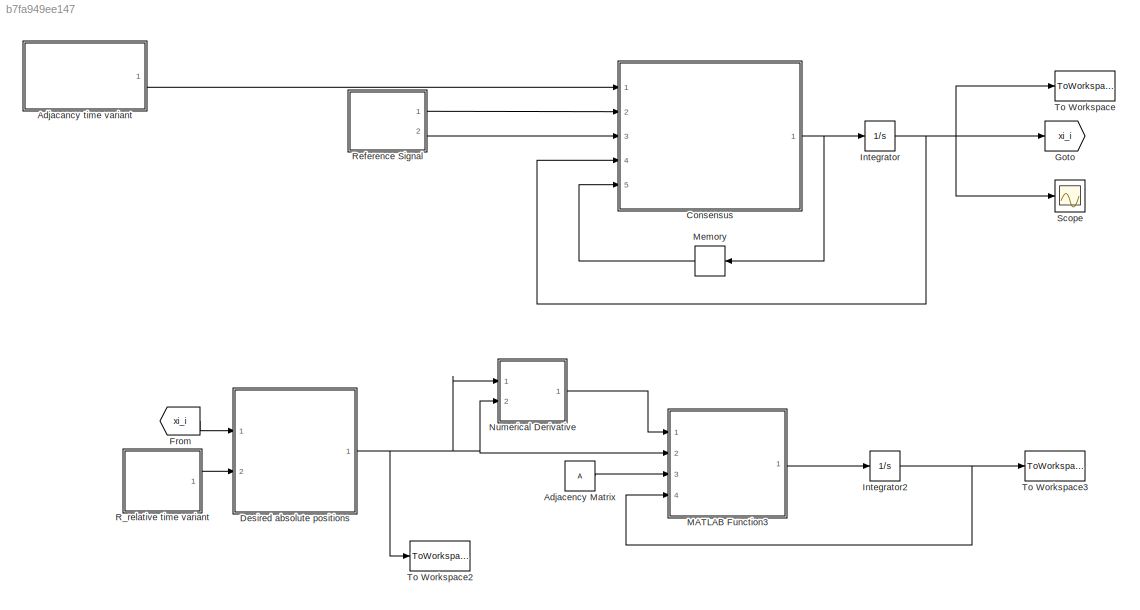
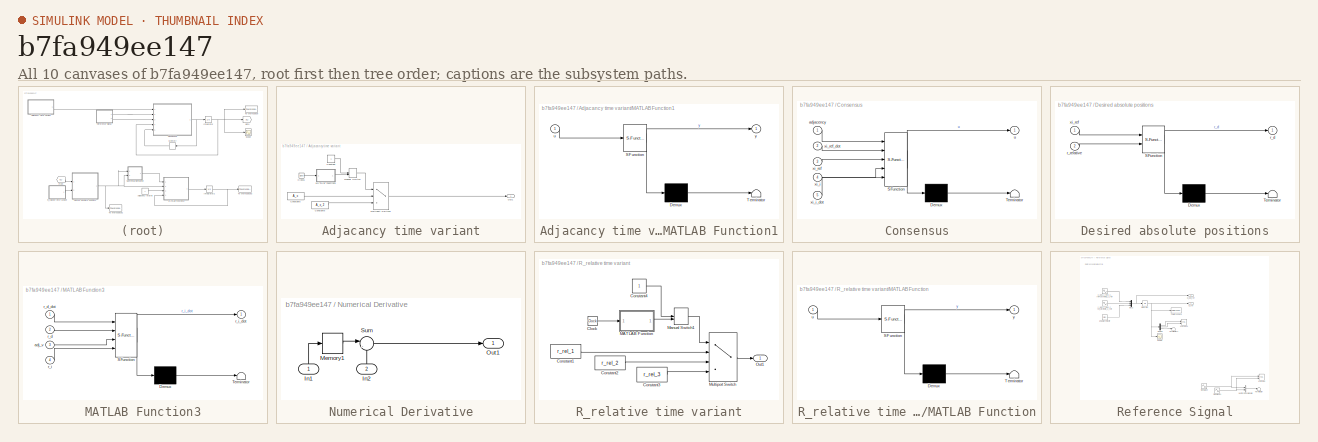
[diagram: thumbnail index - all 10 canvases of the model, root first then tree order]
MODEL slx_b7fa949ee147
KIND model
CONFIG AbsTol = auto
CONFIG FixedStep = 0.01
CONFIG MaxStep = 0.01
CONFIG MinStep = auto
CONFIG RelTol = 1e-3
CONFIG SampleTimeConstraint = Unconstrained
CONFIG Solver = VariableStepAuto
CONFIG SolverMode = Auto
CONFIG SolverName = VariableStepAuto
CONFIG StartTime = 0.0
CONFIG StopTime = 100
BLOCK [SubSystem] Adjacancy time variant
  Ports = [0, 1]
  RequestExecContextInheritance = off
  Variant = off
BLOCK [Clock] Adjacancy time variant/Clock1
BLOCK [Constant] Adjacancy time variant/Constant
BLOCK [Constant] Adjacancy time variant/Constant5
  Value = A_c
BLOCK [Constant] Adjacancy time variant/Constant6
  Value = A_c_2
BLOCK [SubSystem] Adjacancy time variant/MATLAB Function1
  ErrorFcn = Stateflow.Translate.translate
  PermitHierarchicalResolution = ExplicitOnly
  Ports = [1, 1]
  RequestExecContextInheritance = off
  SFBlockType = MATLAB Function
  TreatAsAtomicUnit = on
  Variant = off
BLOCK [Demux] Adjacancy time variant/MATLAB Function1/ Demux 
  Outputs = 1
  Ports = [1, 1]
BLOCK [S-Function] Adjacancy time variant/MATLAB Function1/ SFunction 
  EnableBusSupport = on
  FunctionName = sf_sfun
  PortCounts = [1 2]
  Ports = [1, 2]
  SFunctionDeploymentMode = off
  Tag = Stateflow S-Function simulation 1
BLOCK [Terminator] Adjacancy time variant/MATLAB Function1/ Terminator 
BLOCK [Inport] Adjacancy time variant/MATLAB Function1/u
  IconDisplay = Port number
BLOCK [Outport] Adjacancy time variant/MATLAB Function1/y
  IconDisplay = Port number
BLOCK [ManualSwitch] Adjacancy time variant/Manual Switch
  CurrentSetting = 0
BLOCK [MultiPortSwitch] Adjacancy time variant/Multiport Switch1
  InputSameDT = off
  Inputs = 2
  Ports = [3, 1]
  SaturateOnIntegerOverflow = off
BLOCK [Outport] Adjacancy time variant/Out1
  IconDisplay = Port number
BLOCK [Constant] Adjacency Matrix
  Value = A
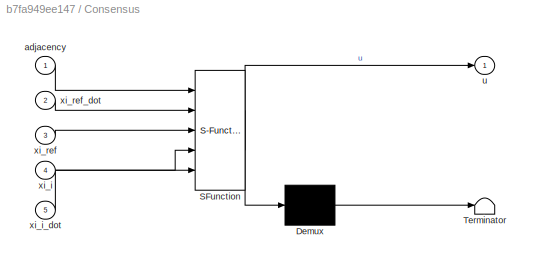
BLOCK [SubSystem] Consensus
  ErrorFcn = Stateflow.Translate.translate
  MinAlgLoopOccurrences = on
  PermitHierarchicalResolution = ExplicitOnly
  Ports = [5, 1]
  RequestExecContextInheritance = off
  SFBlockType = MATLAB Function
  TreatAsAtomicUnit = on
  Variant = off
BLOCK [Demux] Consensus/ Demux 
  Outputs = 1
  Ports = [1, 1]
BLOCK [S-Function] Consensus/ SFunction 
  EnableBusSupport = on
  FunctionName = sf_sfun
  PortCounts = [5 2]
  Ports = [5, 2]
  SFunctionDeploymentMode = off
  Tag = Stateflow S-Function simulation 2
BLOCK [Terminator] Consensus/ Terminator 
BLOCK [Inport] Consensus/adjacency
  IconDisplay = Port number
BLOCK [Outport] Consensus/u
  IconDisplay = Port number
BLOCK [Inport] Consensus/xi_i
  IconDisplay = Port number
  Port = 4
BLOCK [Inport] Consensus/xi_i_dot
  IconDisplay = Port number
  Port = 5
BLOCK [Inport] Consensus/xi_ref
  IconDisplay = Port number
  Port = 3
BLOCK [Inport] Consensus/xi_ref_dot
  IconDisplay = Port number
  Port = 2
BLOCK [SubSystem] Desired absolute positions
  ErrorFcn = Stateflow.Translate.translate
  PermitHierarchicalResolution = ExplicitOnly
  Ports = [2, 1]
  RequestExecContextInheritance = off
  SFBlockType = MATLAB Function
  TreatAsAtomicUnit = on
  Variant = off
BLOCK [Demux] Desired absolute positions/ Demux 
  Outputs = 1
  Ports = [1, 1]
BLOCK [S-Function] Desired absolute positions/ SFunction 
  EnableBusSupport = on
  FunctionName = sf_sfun
  PortCounts = [2 2]
  Ports = [2, 2]
  SFunctionDeploymentMode = off
  Tag = Stateflow S-Function simulation 4
BLOCK [Terminator] Desired absolute positions/ Terminator 
BLOCK [Outport] Desired absolute positions/r_d
  IconDisplay = Port number
BLOCK [Inport] Desired absolute positions/r_relative
  IconDisplay = Port number
  Port = 2
BLOCK [Inport] Desired absolute positions/xi_ref
  IconDisplay = Port number
BLOCK [From] From
  GotoTag = xi_i
BLOCK [Goto] Goto
  GotoTag = xi_i
BLOCK [Integrator] Integrator
  InitialCondition = xi_init
  Ports = [1, 1]
BLOCK [Integrator] Integrator2
  InitialCondition = r_init
  Ports = [1, 1]
BLOCK [SubSystem] MATLAB Function3
  ErrorFcn = Stateflow.Translate.translate
  PermitHierarchicalResolution = ExplicitOnly
  Ports = [4, 1]
  RequestExecContextInheritance = off
  SFBlockType = MATLAB Function
  TreatAsAtomicUnit = on
  Variant = off
BLOCK [Demux] MATLAB Function3/ Demux 
  Outputs = 1
  Ports = [1, 1]
BLOCK [S-Function] MATLAB Function3/ SFunction 
  EnableBusSupport = on
  FunctionName = sf_sfun
  PortCounts = [4 2]
  Ports = [4, 2]
  SFunctionDeploymentMode = off
  Tag = Stateflow S-Function simulation 5
BLOCK [Terminator] MATLAB Function3/ Terminator 
BLOCK [Inport] MATLAB Function3/adj_v
  IconDisplay = Port number
  Port = 3
BLOCK [Inport] MATLAB Function3/r_d
  IconDisplay = Port number
  Port = 2
BLOCK [Inport] MATLAB Function3/r_d_dot
  IconDisplay = Port number
BLOCK [Inport] MATLAB Function3/r_i
  IconDisplay = Port number
  Port = 4
BLOCK [Outport] MATLAB Function3/r_i_dot
  IconDisplay = Port number
BLOCK [Memory] Memory
BLOCK [SubSystem] Numerical Derivative
  Ports = [2, 1]
  RequestExecContextInheritance = off
  Variant = off
BLOCK [Inport] Numerical Derivative/In1
  IconDisplay = Port number
BLOCK [Inport] Numerical Derivative/In2
  IconDisplay = Port number
  Port = 2
BLOCK [Memory] Numerical Derivative/Memory1
BLOCK [Outport] Numerical Derivative/Out1
  IconDisplay = Port number
BLOCK [Sum] Numerical Derivative/Sum
  IconShape = round
  InputSameDT = off
  Inputs = |-+
  OutDataTypeStr = Inherit: Inherit via internal rule
  Ports = [2, 1]
  SaturateOnIntegerOverflow = off
BLOCK [SubSystem] R_relative time variant
  Ports = [0, 1]
  RequestExecContextInheritance = off
  Variant = off
BLOCK [Clock] R_relative time variant/Clock
BLOCK [Constant] R_relative time variant/Constant1
  Value = r_rel_1
BLOCK [Constant] R_relative time variant/Constant2
  Value = r_rel_2
BLOCK [Constant] R_relative time variant/Constant3
  Value = r_rel_3
BLOCK [Constant] R_relative time variant/Constant4
BLOCK [SubSystem] R_relative time variant/MATLAB Function
  ErrorFcn = Stateflow.Translate.translate
  PermitHierarchicalResolution = ExplicitOnly
  Ports = [1, 1]
  RequestExecContextInheritance = off
  SFBlockType = MATLAB Function
  TreatAsAtomicUnit = on
  Variant = off
BLOCK [Demux] R_relative time variant/MATLAB Function/ Demux 
  Outputs = 1
  Ports = [1, 1]
BLOCK [S-Function] R_relative time variant/MATLAB Function/ SFunction 
  EnableBusSupport = on
  FunctionName = sf_sfun
  PortCounts = [1 2]
  Ports = [1, 2]
  SFunctionDeploymentMode = off
  Tag = Stateflow S-Function simulation 3
BLOCK [Terminator] R_relative time variant/MATLAB Function/ Terminator 
BLOCK [Inport] R_relative time variant/MATLAB Function/u
  IconDisplay = Port number
BLOCK [Outport] R_relative time variant/MATLAB Function/y
  IconDisplay = Port number
BLOCK [ManualSwitch] R_relative time variant/Manual Switch1
  CurrentSetting = 0
BLOCK [MultiPortSwitch] R_relative time variant/Multiport Switch
  InputSameDT = off
  Ports = [4, 1]
  SaturateOnIntegerOverflow = off
BLOCK [Outport] R_relative time variant/Out1
  IconDisplay = Port number
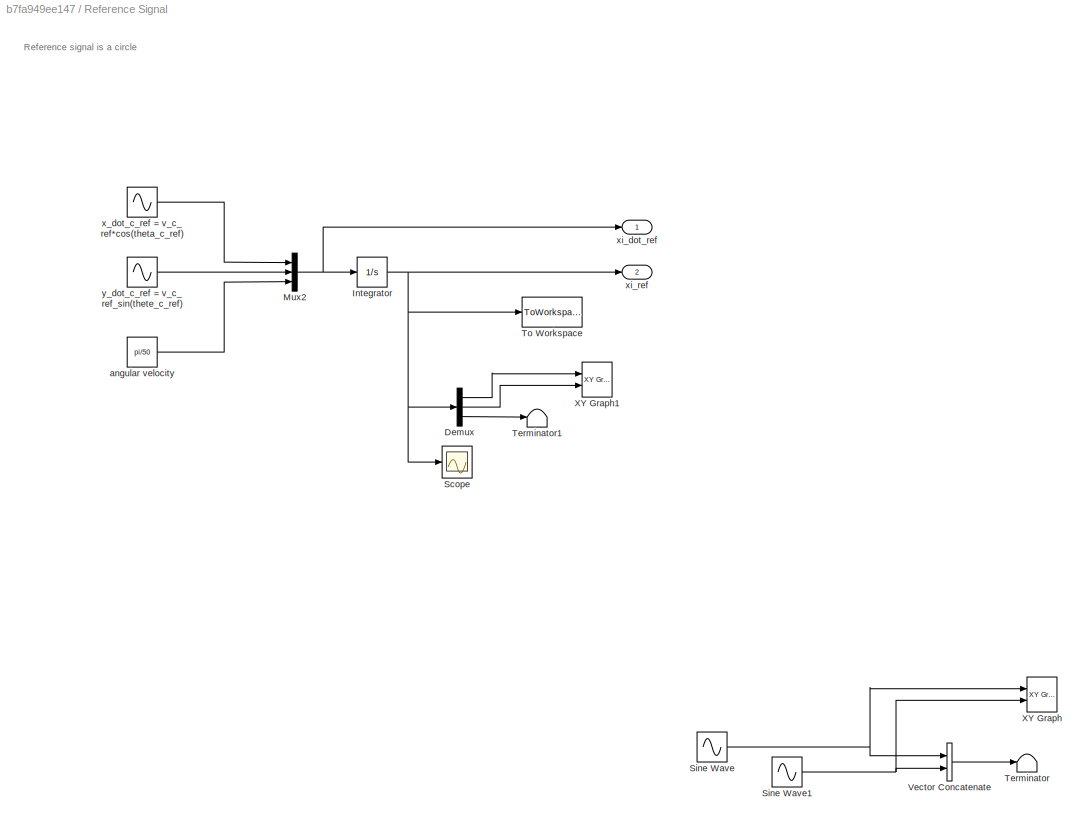
BLOCK [SubSystem] Reference Signal
  Ports = [0, 2]
  RequestExecContextInheritance = off
  Variant = off
BLOCK [Demux] Reference Signal/Demux
  DisplayOption = bar
  Outputs = 3
  Ports = [1, 3]
BLOCK [Integrator] Reference Signal/Integrator
  InitialCondition = [0;0;0]
  Ports = [1, 1]
BLOCK [Mux] Reference Signal/Mux2
  DisplayOption = bar
  Inputs = 3
  Ports = [3, 1]
BLOCK [Scope] Reference Signal/Scope
  Ports = [1]
  ScopeSpecificationString = Simulink.scopes.TimeScopeBlockCfg('CurrentConfiguration', extmgr.ConfigurationSet(extmgr.Configuration('Core','General UI',true),extmgr.Configuration('Core','Source UI',true),extmgr.Configuration('Sources','WiredSimulink',true,'DataLoggingVariableName','ScopeData1'),extmgr.Configuration('Visuals','Time Domain',true,'SerializedDisplays',{struct('MinYLimReal','-1.79783','MaxYLimReal','7.18108','YLab...<+1431ch>
BLOCK [Sin] Reference Signal/Sine Wave
  Commented = on
  Phase = pi/2
  Ports = [0, 1]
  SampleTime = 0
BLOCK [Sin] Reference Signal/Sine Wave1
  Commented = on
  Ports = [0, 1]
  SampleTime = 0
BLOCK [Terminator] Reference Signal/Terminator
  Commented = on
BLOCK [Terminator] Reference Signal/Terminator1
BLOCK [ToWorkspace] Reference Signal/To Workspace
  FixptAsFi = on
  MaxDataPoints = inf
  Ports = [1]
  SampleTime = -1
  Save2DSignal = 3-D array (concatenate along third dimension)
  SaveFormat = Timeseries
  VariableName = xi_ref
BLOCK [Concatenate] Reference Signal/Vector Concatenate
  Commented = on
  Ports = [2, 1]
BLOCK [Reference] Reference Signal/XY Graph  REF=simulink/Sinks/XY Graph
  Commented = on
  Ports = [2]
  SourceBlock = simulink/Sinks/XY Graph
  SourceType = XY scope.
BLOCK [Reference] Reference Signal/XY Graph1  REF=simulink/Sinks/XY Graph
  Commented = on
  Ports = [2]
  SourceBlock = simulink/Sinks/XY Graph
  SourceType = XY scope.
BLOCK [Constant] Reference Signal/angular velocity
  Value = pi/50
BLOCK [Sin] Reference Signal/x_dot_c_ref = v_c_ref*cos(theta_c_ref)
  Amplitude = 9*pi/500
  Frequency = pi/50
  Phase = pi/2
  Ports = [0, 1]
  SampleTime = 0
BLOCK [Outport] Reference Signal/xi_dot_ref
  IconDisplay = Port number
BLOCK [Outport] Reference Signal/xi_ref
  IconDisplay = Port number
  Port = 2
BLOCK [Sin] Reference Signal/y_dot_c_ref = v_c_ref_sin(thete_c_ref)
  Amplitude = 9*pi/500
  Frequency = pi/50
  Ports = [0, 1]
  SampleTime = 0
BLOCK [Scope] Scope
  Ports = [1]
  ScopeSpecificationString = Simulink.scopes.TimeScopeBlockCfg('CurrentConfiguration', extmgr.ConfigurationSet(extmgr.Configuration('Core','General UI',true),extmgr.Configuration('Core','Source UI',true),extmgr.Configuration('Sources','WiredSimulink',true),extmgr.Configuration('Visuals','Time Domain',true,'SerializedDisplays',{struct('MinYLimReal','-4.56832','MaxYLimReal','7.25237','YLabelReal','','MinYLimMag','0.00000','MaxY...<+1645ch>
BLOCK [ToWorkspace] To Workspace
  FixptAsFi = on
  MaxDataPoints = inf
  Ports = [1]
  SampleTime = -1
  Save2DSignal = 3-D array (concatenate along third dimension)
  SaveFormat = Timeseries
  VariableName = xi_ref_i
BLOCK [ToWorkspace] To Workspace2
  FixptAsFi = on
  MaxDataPoints = inf
  Ports = [1]
  SampleTime = -1
  Save2DSignal = 3-D array (concatenate along third dimension)
  SaveFormat = Timeseries
  VariableName = simout
BLOCK [ToWorkspace] To Workspace3
  FixptAsFi = on
  MaxDataPoints = inf
  Ports = [1]
  SampleTime = -1
  Save2DSignal = 3-D array (concatenate along third dimension)
  SaveFormat = Timeseries
  VariableName = simout1
ANNOTATION Reference Signal: Reference signal is a circle
LINE Adjacancy time variant/Clock1:1 -> Adjacancy time variant/MATLAB Function1:1
LINE Adjacancy time variant/Constant5:1 -> Adjacancy time variant/Multiport Switch1:2
LINE Adjacancy time variant/Constant6:1 -> Adjacancy time variant/Multiport Switch1:3
LINE Adjacancy time variant/Constant:1 -> Adjacancy time variant/Manual Switch:1
LINE Adjacancy time variant/MATLAB Function1:1 -> Adjacancy time variant/Manual Switch:2
LINE Adjacancy time variant/Manual Switch:1 -> Adjacancy time variant/Multiport Switch1:1
LINE Adjacancy time variant/Multiport Switch1:1 -> Adjacancy time variant/Out1:1
LINE Adjacancy time variant:1 -> Consensus:1
LINE Adjacency Matrix:1 -> MATLAB Function3:3
NET Consensus:1 -> Integrator:1, Memory:1
NET Desired absolute positions:1 -> MATLAB Function3:2, Numerical Derivative:1, Numerical Derivative:2, To Workspace2:1
LINE From:1 -> Desired absolute positions:1
NET Integrator2:1 -> MATLAB Function3:4, To Workspace3:1
NET Integrator:1 -> Consensus:4, Goto:1, Scope:1, To Workspace:1
LINE MATLAB Function3:1 -> Integrator2:1
LINE Memory:1 -> Consensus:5
LINE Numerical Derivative/In1:1 -> Numerical Derivative/Memory1:1
LINE Numerical Derivative/In2:1 -> Numerical Derivative/Sum:2
LINE Numerical Derivative/Memory1:1 -> Numerical Derivative/Sum:1
LINE Numerical Derivative/Sum:1 -> Numerical Derivative/Out1:1
LINE Numerical Derivative:1 -> MATLAB Function3:1
LINE R_relative time variant/Clock:1 -> R_relative time variant/MATLAB Function:1
LINE R_relative time variant/Constant1:1 -> R_relative time variant/Multiport Switch:2
LINE R_relative time variant/Constant2:1 -> R_relative time variant/Multiport Switch:3
LINE R_relative time variant/Constant3:1 -> R_relative time variant/Multiport Switch:4
LINE R_relative time variant/Constant4:1 -> R_relative time variant/Manual Switch1:1
LINE R_relative time variant/MATLAB Function:1 -> R_relative time variant/Manual Switch1:2
LINE R_relative time variant/Manual Switch1:1 -> R_relative time variant/Multiport Switch:1
LINE R_relative time variant/Multiport Switch:1 -> R_relative time variant/Out1:1
LINE R_relative time variant:1 -> Desired absolute positions:2
LINE Reference Signal/Demux:1 -> Reference Signal/XY Graph1:1
LINE Reference Signal/Demux:2 -> Reference Signal/XY Graph1:2
LINE Reference Signal/Demux:3 -> Reference Signal/Terminator1:1
NET Reference Signal/Integrator:1 -> Reference Signal/Demux:1, Reference Signal/Scope:1, Reference Signal/To Workspace:1, Reference Signal/xi_ref:1
NET Reference Signal/Mux2:1 -> Reference Signal/Integrator:1, Reference Signal/xi_dot_ref:1
NET Reference Signal/Sine Wave1:1 -> Reference Signal/Vector Concatenate:2, Reference Signal/XY Graph:2
NET Reference Signal/Sine Wave:1 -> Reference Signal/Vector Concatenate:1, Reference Signal/XY Graph:1
LINE Reference Signal/Vector Concatenate:1 -> Reference Signal/Terminator:1
LINE Reference Signal/angular velocity:1 -> Reference Signal/Mux2:3
LINE Reference Signal/x_dot_c_ref = v_c_ref*cos(theta_c_ref):1 -> Reference Signal/Mux2:1
LINE Reference Signal/y_dot_c_ref = v_c_ref_sin(thete_c_ref):1 -> Reference Signal/Mux2:2
LINE Reference Signal:1 -> Consensus:2
LINE Reference Signal:2 -> Consensus:3
note: NET lines group one-source signal fan-out (src -> all destinations, sorted); 1:1 wires keep LINE
CHART Adjacancy time variant/MATLAB Function1 states=1 transitions=1
  STATE_LABEL 'eML_blk_kernel()'
  STATE_LABEL 'SCRIPT:\nfunction y = fcn(u)\n\nif (u >= 40 && u < 60)\n    y = 2;\nelse\n    y = 1;\nend\n\n'
CHART Consensus states=1 transitions=1
  STATE_LABEL 'eML_blk_kernel()'
  STATE_LABEL 'SCRIPT:\nfunction u = fcn(adjacency, xi_ref_dot, xi_ref, xi_i, xi_i_dot)\n% calculates u = xi_i_dot for all vehicles according to the conensus\n% formula for time-varying reference state (access to the leader only to a subgroup)\n\n% Number of vehicles\nN = size(adjacency,1)-1;\n% initialize output u to zero\nu = zeros(3,N);\n\n% scalar to influence convergence speed\ngamma = 1;\n\n% formula to calculate xi_do...<+712ch>'
CHART R_relative time variant/MATLAB Function states=1 transitions=1
  STATE_LABEL 'eML_blk_kernel()'
  STATE_LABEL 'SCRIPT:\nfunction y = fcn(u)\n\nif (u < 20)\n    y = 1;\nelseif (u >= 20 && u < 50)\n    y = 2;\nelseif (u >= 50 && u < 100)\n    y = 3;\nelse\n    y = 1;\nend\n\n'
CHART Desired absolute positions states=1 transitions=1
  STATE_LABEL 'eML_blk_kernel()'
  STATE_LABEL 'SCRIPT:\nfunction r_d  = desired_pos_abs(xi_ref, r_relative)\n% desired_pos_abs computes the desired absolute positions depending on the\n% reference frame and the relative coordinates of the desired positions\n% outputs x_d and y_d in a vector r_d\n% inputs are xi_ref = [x_coordinate_frame, y_coordinate_frame,\n% theta_coordinate frame] the reference frame\n\nN = size(r_relative,2);\nr_d = zeros(size(r_re...<+168ch>'
CHART MATLAB Function3 states=1 transitions=1
  STATE_LABEL 'eML_blk_kernel()'
  STATE_LABEL 'SCRIPT:\nfunction r_i_dot = fcn(r_d_dot, r_d, adj_v, r_i)\n\nN = size(adj_v,1);\nu = zeros(2,N);\nalpha = 1;\ntemp = zeros(2,1);\n\nfor i=1:1:N\n    for j=1:1:N\n        temp = temp + adj_v(i,j)*((r_i(:,i)-r_d(:,i))-(r_i(:,j)-r_d(:,j)));\n    end\n    u(:,i) = r_d_dot(:,i)-alpha*(r_i(:,i)-r_d(:,i)) - temp;\n    temp = zeros(2,1);\nend\n\nr_i_dot = u;\n'
